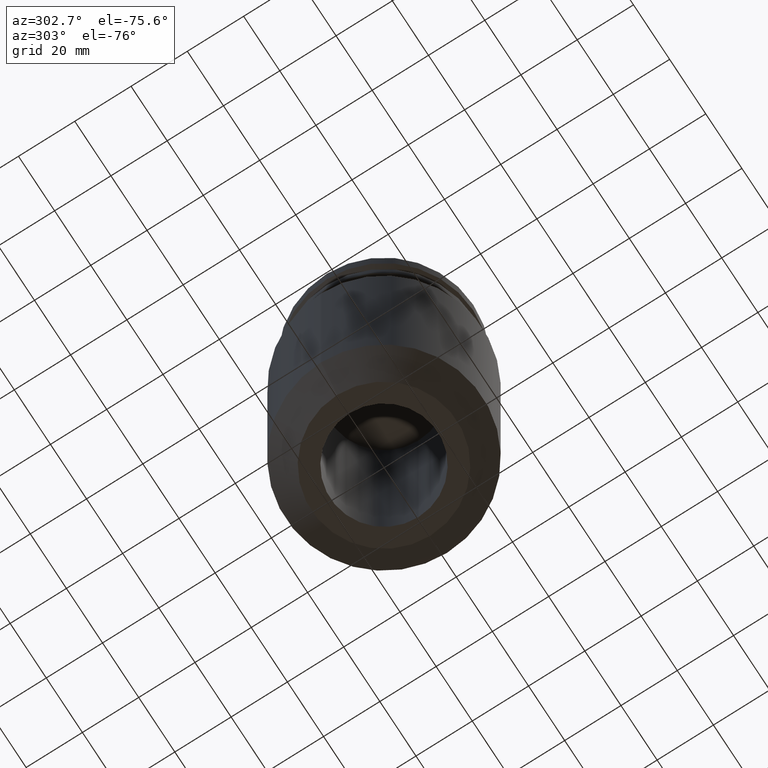
[diagram: clean part render]
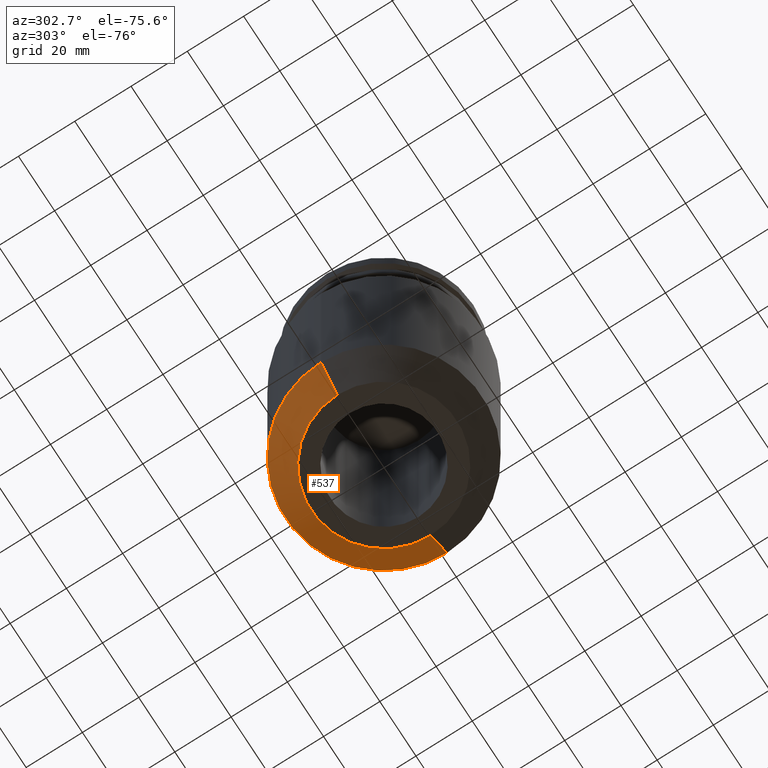
[diagram: same view with one face highlighted and labeled with its STEP entity id]
A machine part, auxiliary view. The second image highlights one B-rep face of the part: STEP entity #537.
In plain terms, the highlighted conical surface has half-angle 45 deg.
Its self-contained STEP definition (entity closure, byte-faithful):
#7 = DIRECTION ( 'NONE',  ( 1.000000000000000000, 0.000000000000000000, 0.000000000000000000 ) ) ;
#13 = DIRECTION ( 'NONE',  ( -0.000000000000000000, -0.000000000000000000, 1.000000000000000000 ) ) ;
#40 = VERTEX_POINT ( 'NONE', #760 ) ;
#46 = CARTESIAN_POINT ( 'NONE',  ( 0.000000000000000000, 0.000000000000000000, -127.0000000000000000 ) ) ;
#50 = VERTEX_POINT ( 'NONE', #563 ) ;
#69 = EDGE_CURVE ( 'NONE', #40, #624, #647, .T. ) ;
#114 = EDGE_CURVE ( 'NONE', #624, #533, #269, .T. ) ;
#131 = AXIS2_PLACEMENT_3D ( 'NONE', #536, #811, #784 ) ;
#157 = LINE ( 'NONE', #544, #364 ) ;
#186 = CARTESIAN_POINT ( 'NONE',  ( -34.92499999999999716, 4.277078946022130887E-15, -117.9000000000000057 ) ) ;
#215 = ORIENTED_EDGE ( 'NONE', *, *, #114, .T. ) ;
#220 = CIRCLE ( 'NONE', #131, 34.92499999999999716 ) ;
#268 = CARTESIAN_POINT ( 'NONE',  ( -25.82499999999997087, 3.719864652410083281E-15, -127.0000000000000000 ) ) ;
#269 = LINE ( 'NONE', #342, #788 ) ;
#301 = EDGE_CURVE ( 'NONE', #40, #50, #157, .T. ) ;
#342 = CARTESIAN_POINT ( 'NONE',  ( -25.82499999999997087, 3.162650358798036069E-15, -127.0000000000000000 ) ) ;
#364 = VECTOR ( 'NONE', #678, 1000.000000000000000 ) ;
#367 = ORIENTED_EDGE ( 'NONE', *, *, #301, .F. ) ;
#385 = AXIS2_PLACEMENT_3D ( 'NONE', #712, #702, #641 ) ;
#418 = EDGE_CURVE ( 'NONE', #50, #533, #220, .T. ) ;
#451 = EDGE_LOOP ( 'NONE', ( #509, #215, #602, #367 ) ) ;
#464 = AXIS2_PLACEMENT_3D ( 'NONE', #46, #13, #7 ) ;
#509 = ORIENTED_EDGE ( 'NONE', *, *, #69, .T. ) ;
#533 = VERTEX_POINT ( 'NONE', #186 ) ;
#536 = CARTESIAN_POINT ( 'NONE',  ( 0.000000000000000000, 0.000000000000000000, -117.9000000000000057 ) ) ;
#537 = ADVANCED_FACE ( 'NONE', ( #652 ), #650, .T. ) ;
#544 = CARTESIAN_POINT ( 'NONE',  ( 25.82499999999997087, 0.000000000000000000, -127.0000000000000000 ) ) ;
#563 = CARTESIAN_POINT ( 'NONE',  ( 34.92499999999999716, 0.000000000000000000, -117.9000000000000057 ) ) ;
#602 = ORIENTED_EDGE ( 'NONE', *, *, #418, .F. ) ;
#624 = VERTEX_POINT ( 'NONE', #268 ) ;
#641 = DIRECTION ( 'NONE',  ( 1.000000000000000000, 0.000000000000000000, 0.000000000000000000 ) ) ;
#647 = CIRCLE ( 'NONE', #464, 25.82499999999997087 ) ;
#650 = CONICAL_SURFACE ( 'NONE', #385, 25.82499999999997087, 0.7853981633974500554 ) ;
#652 = FACE_OUTER_BOUND ( 'NONE', #451, .T. ) ;
#678 = DIRECTION ( 'NONE',  ( 0.7071067811865487940, 0.000000000000000000, 0.7071067811865463515 ) ) ;
#702 = DIRECTION ( 'NONE',  ( -0.000000000000000000, -0.000000000000000000, 1.000000000000000000 ) ) ;
#712 = CARTESIAN_POINT ( 'NONE',  ( 0.000000000000000000, 0.000000000000000000, -127.0000000000000000 ) ) ;
#760 = CARTESIAN_POINT ( 'NONE',  ( 25.82499999999997087, 0.000000000000000000, -127.0000000000000000 ) ) ;
#784 = DIRECTION ( 'NONE',  ( 1.000000000000000000, 0.000000000000000000, 0.000000000000000000 ) ) ;
#788 = VECTOR ( 'NONE', #847, 1000.000000000000000 ) ;
#811 = DIRECTION ( 'NONE',  ( -0.000000000000000000, -0.000000000000000000, 1.000000000000000000 ) ) ;
#847 = DIRECTION ( 'NONE',  ( -0.7071067811865487940, 8.659560562354948882E-17, 0.7071067811865463515 ) ) ;